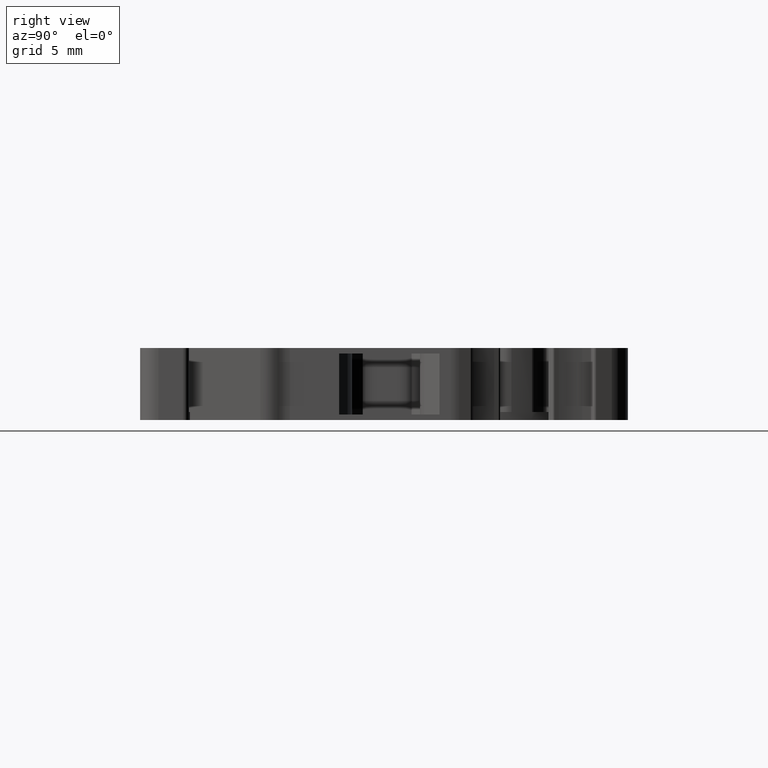
[diagram: clean part render]
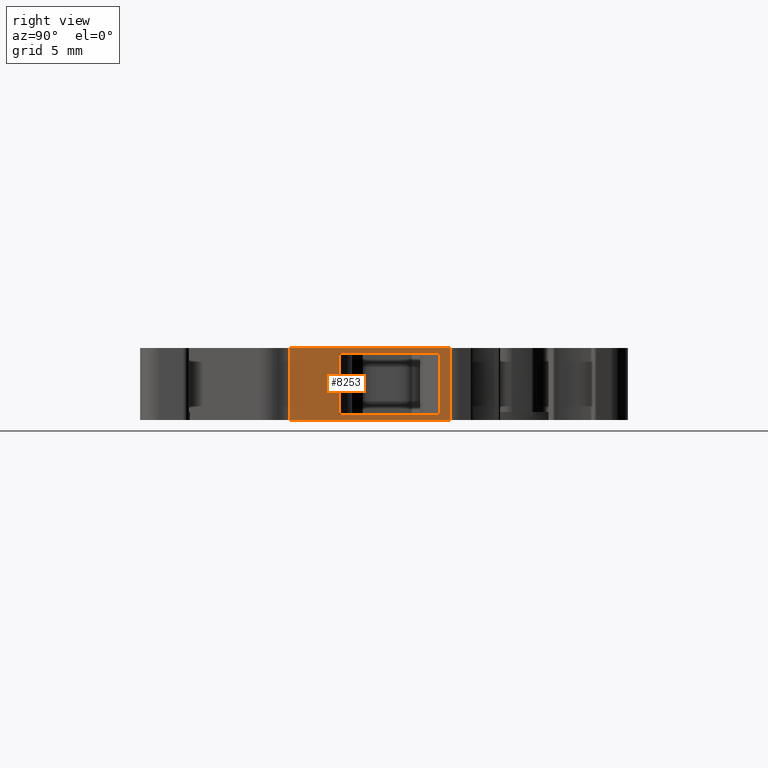
[diagram: same view with one face highlighted and labeled with its STEP entity id]
A machine part, right view. The second image highlights one B-rep face of the part: STEP entity #8253.
In plain terms, the highlighted planar face has unit normal (1, 0, 0).
Its self-contained STEP definition (entity closure, byte-faithful):
#384 = EDGE_LOOP ( 'NONE', ( #9218, #9171, #9187, #9114 ) ) ;
#446 = EDGE_LOOP ( 'NONE', ( #9109, #9098, #9172, #9209 ) ) ;
#793 = VERTEX_POINT ( 'NONE', #10963 ) ;
#812 = VERTEX_POINT ( 'NONE', #10973 ) ;
#813 = VERTEX_POINT ( 'NONE', #10996 ) ;
#822 = VERTEX_POINT ( 'NONE', #10980 ) ;
#1303 = CARTESIAN_POINT ( 'NONE',  ( 1480.178076624466000, 933.7887670956339400, -2.500000000075659900 ) ) ;
#1329 = CARTESIAN_POINT ( 'NONE',  ( 1480.178076624466000, 933.7887670956339400, 2.500000000075659900 ) ) ;
#1365 = CARTESIAN_POINT ( 'NONE',  ( 1480.178075973112100, 942.0225126443959900, 2.500000000006994800 ) ) ;
#1693 = CARTESIAN_POINT ( 'NONE',  ( 1480.178075973112100, 942.0225126443959900, -2.500000000006994800 ) ) ;
#3529 = LINE ( 'NONE', #3530, #7332 ) ;
#3530 = CARTESIAN_POINT ( 'NONE',  ( 1480.178076624833900, 934.0887670955789900, -2.500000000006994800 ) ) ;
#3537 = DIRECTION ( 'NONE',  ( -8.214571010904062300E-008, 0.9999999999999965600, 0.0000000000000000000 ) ) ;
#3569 = LINE ( 'NONE', #3587, #7381 ) ;
#3587 = CARTESIAN_POINT ( 'NONE',  ( 1480.178076624833900, 934.0887670955789900, 2.500000000006994800 ) ) ;
#3588 = DIRECTION ( 'NONE',  ( -8.214571010904062300E-008, 0.9999999999999965600, 0.0000000000000000000 ) ) ;
#3867 = DIRECTION ( 'NONE',  ( 8.214561907965810900E-008, -0.9999999999999965600, 0.0000000000000000000 ) ) ;
#3885 = CARTESIAN_POINT ( 'NONE',  ( 1480.178075896574700, 942.9495760049989000, -2.949999999999999700 ) ) ;
#3890 = LINE ( 'NONE', #3885, #8666 ) ;
#3951 = DIRECTION ( 'NONE',  ( -8.214581752137368500E-008, 0.9999999999999965600, 0.0000000000000000000 ) ) ;
#3969 = CARTESIAN_POINT ( 'NONE',  ( 1480.178076980804200, 929.7507111823320000, 2.949999999999999700 ) ) ;
#3974 = LINE ( 'NONE', #3969, #8697 ) ;
#4258 = LINE ( 'NONE', #4260, #7309 ) ;
#4260 = CARTESIAN_POINT ( 'NONE',  ( 1480.178076624466000, 933.7887670956339400, -500021.1771457070700 ) ) ;
#4267 = DIRECTION ( 'NONE',  ( 0.0000000000000000000, 0.0000000000000000000, -1.000000000000000000 ) ) ;
#4268 = LINE ( 'NONE', #4279, #7324 ) ;
#4271 = DIRECTION ( 'NONE',  ( 0.0000000000000000000, 0.0000000000000000000, 1.000000000000000000 ) ) ;
#4279 = CARTESIAN_POINT ( 'NONE',  ( 1480.178075972727800, 942.0225126444389600, -500021.1771457070700 ) ) ;
#4688 = EDGE_CURVE ( 'NONE', #793, #822, #14148, .T. ) ;
#4697 = EDGE_CURVE ( 'NONE', #812, #813, #14134, .T. ) ;
#4830 = EDGE_CURVE ( 'NONE', #9064, #9091, #4258, .T. ) ;
#4833 = EDGE_CURVE ( 'NONE', #10584, #11672, #4268, .T. ) ;
#4849 = EDGE_CURVE ( 'NONE', #9064, #11672, #3529, .T. ) ;
#4875 = EDGE_CURVE ( 'NONE', #9091, #10584, #3569, .T. ) ;
#5041 = EDGE_CURVE ( 'NONE', #793, #813, #3890, .T. ) ;
#5101 = EDGE_CURVE ( 'NONE', #812, #822, #3974, .T. ) ;
#7309 = VECTOR ( 'NONE', #4271, 1000.000000000000000 ) ;
#7324 = VECTOR ( 'NONE', #4267, 1000.000000000000000 ) ;
#7332 = VECTOR ( 'NONE', #3537, 1000.000000000000100 ) ;
#7381 = VECTOR ( 'NONE', #3588, 1000.000000000000100 ) ;
#8253 = ADVANCED_FACE ( 'NONE', ( #12222, #12253 ), #12256, .T. ) ;
#8666 = VECTOR ( 'NONE', #3867, 1000.000000000000100 ) ;
#8697 = VECTOR ( 'NONE', #3951, 1000.000000000000200 ) ;
#9064 = VERTEX_POINT ( 'NONE', #1303 ) ;
#9091 = VERTEX_POINT ( 'NONE', #1329 ) ;
#9098 = ORIENTED_EDGE ( 'NONE', *, *, #4688, .T. ) ;
#9109 = ORIENTED_EDGE ( 'NONE', *, *, #5041, .F. ) ;
#9114 = ORIENTED_EDGE ( 'NONE', *, *, #4875, .T. ) ;
#9171 = ORIENTED_EDGE ( 'NONE', *, *, #4849, .F. ) ;
#9172 = ORIENTED_EDGE ( 'NONE', *, *, #5101, .F. ) ;
#9187 = ORIENTED_EDGE ( 'NONE', *, *, #4830, .T. ) ;
#9209 = ORIENTED_EDGE ( 'NONE', *, *, #4697, .T. ) ;
#9218 = ORIENTED_EDGE ( 'NONE', *, *, #4833, .T. ) ;
#10283 = AXIS2_PLACEMENT_3D ( 'NONE', #12230, #12227, #12223 ) ;
#10584 = VERTEX_POINT ( 'NONE', #1365 ) ;
#10963 = CARTESIAN_POINT ( 'NONE',  ( 1480.178075896574700, 942.9495760049989000, -2.949999999999999700 ) ) ;
#10973 = CARTESIAN_POINT ( 'NONE',  ( 1480.178076980804200, 929.7507111823320000, 2.949999999999999700 ) ) ;
#10980 = CARTESIAN_POINT ( 'NONE',  ( 1480.178075896574200, 942.9495760049989000, 2.949999999999999700 ) ) ;
#10996 = CARTESIAN_POINT ( 'NONE',  ( 1480.178076980804200, 929.7507111823320000, -2.949999999999999700 ) ) ;
#11672 = VERTEX_POINT ( 'NONE', #1693 ) ;
#11820 = VECTOR ( 'NONE', #14186, 1000.000000000000000 ) ;
#11921 = VECTOR ( 'NONE', #14126, 1000.000000000000000 ) ;
#12222 = FACE_OUTER_BOUND ( 'NONE', #446, .T. ) ;
#12223 = DIRECTION ( 'NONE',  ( 8.214571098364563000E-008, -0.9999999999999965600, 0.0000000000000000000 ) ) ;
#12227 = DIRECTION ( 'NONE',  ( 0.9999999999999966700, 8.214571098364564400E-008, 0.0000000000000000000 ) ) ;
#12230 = CARTESIAN_POINT ( 'NONE',  ( 1480.178079134952200, 903.5272105145279500, 2.899999999999999900 ) ) ;
#12253 = FACE_BOUND ( 'NONE', #384, .T. ) ;
#12256 = PLANE ( 'NONE',  #10283 ) ;
#14126 = DIRECTION ( 'NONE',  ( -0.0000000000000000000, -0.0000000000000000000, 1.000000000000000000 ) ) ;
#14134 = LINE ( 'NONE', #14155, #11820 ) ;
#14148 = LINE ( 'NONE', #14150, #11921 ) ;
#14150 = CARTESIAN_POINT ( 'NONE',  ( 1480.178075896574000, 942.9495760049989000, 2.899999999999999900 ) ) ;
#14155 = CARTESIAN_POINT ( 'NONE',  ( 1480.178076980804200, 929.7507111823320000, -2.899999999999999900 ) ) ;
#14186 = DIRECTION ( 'NONE',  ( 0.0000000000000000000, 0.0000000000000000000, -1.000000000000000000 ) ) ;